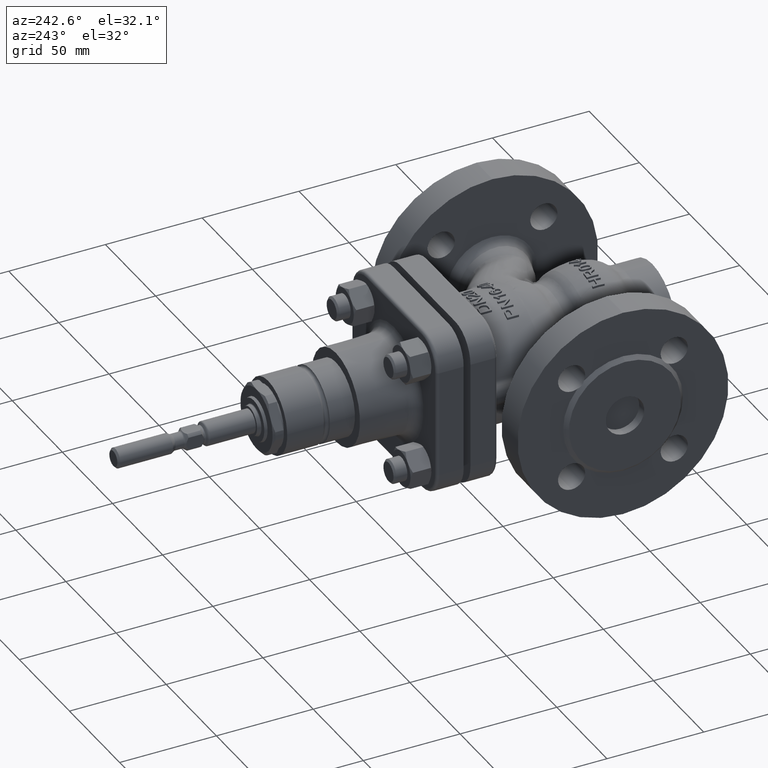
[diagram: clean part render]
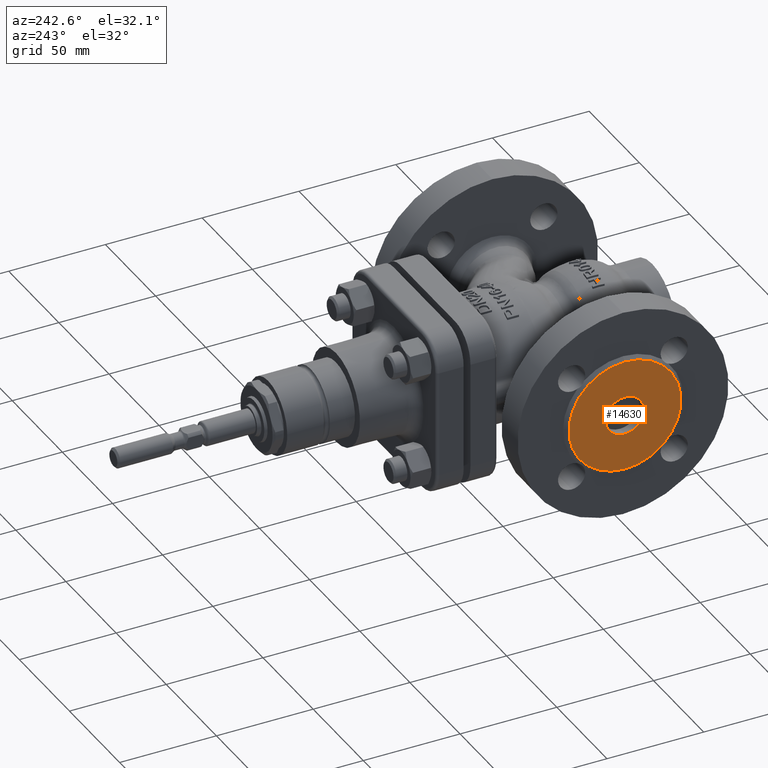
[diagram: same view with one face highlighted and labeled with its STEP entity id]
A machine part, auxiliary view. The second image highlights one B-rep face of the part: STEP entity #14630.
In plain terms, the highlighted planar face has unit normal (1, 0, 0).
Its self-contained STEP definition (entity closure, byte-faithful):
#6480 = CARTESIAN_POINT ( 'NONE',  ( -74.99999999999998600, 0.0000000000000000000, -29.00000000000000000 ) ) ;
#7159 = AXIS2_PLACEMENT_3D ( 'NONE', #22865, #103808, #34469 ) ;
#7578 = ORIENTED_EDGE ( 'NONE', *, *, #74420, .T. ) ;
#14630 = ADVANCED_FACE ( 'NONE', ( #75636, #102721 ), #124567, .F. ) ;
#20115 = ORIENTED_EDGE ( 'NONE', *, *, #93870, .T. ) ;
#22865 = CARTESIAN_POINT ( 'NONE',  ( -74.99999999999998600, 0.0000000000000000000, 0.0000000000000000000 ) ) ;
#29685 = CARTESIAN_POINT ( 'NONE',  ( -74.99999999999998600, 0.0000000000000000000, 0.0000000000000000000 ) ) ;
#34469 = DIRECTION ( 'NONE',  ( 0.0000000000000000000, 0.0000000000000000000, -1.000000000000000000 ) ) ;
#41324 = DIRECTION ( 'NONE',  ( 0.0000000000000000000, 0.0000000000000000000, 1.000000000000000000 ) ) ;
#42645 = DIRECTION ( 'NONE',  ( 1.000000000000000000, 0.0000000000000000000, 0.0000000000000000000 ) ) ;
#43139 = DIRECTION ( 'NONE',  ( 0.0000000000000000000, 0.0000000000000000000, -1.000000000000000000 ) ) ;
#47255 = VERTEX_POINT ( 'NONE', #6480 ) ;
#48180 = CARTESIAN_POINT ( 'NONE',  ( -74.99999999999998600, 1.224646799147353300E-015, -10.00000000000000000 ) ) ;
#51734 = DIRECTION ( 'NONE',  ( 1.000000000000000000, -0.0000000000000000000, -0.0000000000000000000 ) ) ;
#54345 = CIRCLE ( 'NONE', #81879, 29.00000000000000000 ) ;
#57611 = AXIS2_PLACEMENT_3D ( 'NONE', #89737, #42645, #43139 ) ;
#64677 = DIRECTION ( 'NONE',  ( -1.000000000000000000, -0.0000000000000000000, -0.0000000000000000000 ) ) ;
#65931 = AXIS2_PLACEMENT_3D ( 'NONE', #121031, #51734, #132689 ) ;
#67126 = CIRCLE ( 'NONE', #7159, 10.00000000000000000 ) ;
#74420 = EDGE_CURVE ( 'NONE', #110621, #127703, #67126, .T. ) ;
#74581 = ORIENTED_EDGE ( 'NONE', *, *, #77562, .T. ) ;
#75636 = FACE_OUTER_BOUND ( 'NONE', #107293, .T. ) ;
#77562 = EDGE_CURVE ( 'NONE', #47255, #91927, #54345, .T. ) ;
#81879 = AXIS2_PLACEMENT_3D ( 'NONE', #29685, #110625, #41324 ) ;
#84613 = CIRCLE ( 'NONE', #138351, 29.00000000000000000 ) ;
#89737 = CARTESIAN_POINT ( 'NONE',  ( -74.99999999999998600, 4.209864763794871500E-015, 0.0000000000000000000 ) ) ;
#91927 = VERTEX_POINT ( 'NONE', #143430 ) ;
#92885 = CIRCLE ( 'NONE', #65931, 10.00000000000000000 ) ;
#93870 = EDGE_CURVE ( 'NONE', #91927, #47255, #84613, .T. ) ;
#102721 = FACE_BOUND ( 'NONE', #105180, .T. ) ;
#103808 = DIRECTION ( 'NONE',  ( 1.000000000000000000, -0.0000000000000000000, -0.0000000000000000000 ) ) ;
#105180 = EDGE_LOOP ( 'NONE', ( #7578, #123405 ) ) ;
#107293 = EDGE_LOOP ( 'NONE', ( #74581, #20115 ) ) ;
#108533 = EDGE_CURVE ( 'NONE', #127703, #110621, #92885, .T. ) ;
#110621 = VERTEX_POINT ( 'NONE', #144696 ) ;
#110625 = DIRECTION ( 'NONE',  ( -1.000000000000000000, -0.0000000000000000000, -0.0000000000000000000 ) ) ;
#121031 = CARTESIAN_POINT ( 'NONE',  ( -74.99999999999998600, 0.0000000000000000000, 0.0000000000000000000 ) ) ;
#123405 = ORIENTED_EDGE ( 'NONE', *, *, #108533, .T. ) ;
#124567 = PLANE ( 'NONE',  #57611 ) ;
#127703 = VERTEX_POINT ( 'NONE', #48180 ) ;
#132689 = DIRECTION ( 'NONE',  ( 0.0000000000000000000, 0.0000000000000000000, -1.000000000000000000 ) ) ;
#133977 = CARTESIAN_POINT ( 'NONE',  ( -74.99999999999998600, 0.0000000000000000000, 0.0000000000000000000 ) ) ;
#138351 = AXIS2_PLACEMENT_3D ( 'NONE', #133977, #64677, #145654 ) ;
#143430 = CARTESIAN_POINT ( 'NONE',  ( -74.99999999999998600, 3.673940397442059200E-015, 29.00000000000000000 ) ) ;
#144696 = CARTESIAN_POINT ( 'NONE',  ( -74.99999999999998600, 0.0000000000000000000, 10.00000000000000000 ) ) ;
#145654 = DIRECTION ( 'NONE',  ( 0.0000000000000000000, 0.0000000000000000000, 1.000000000000000000 ) ) ;